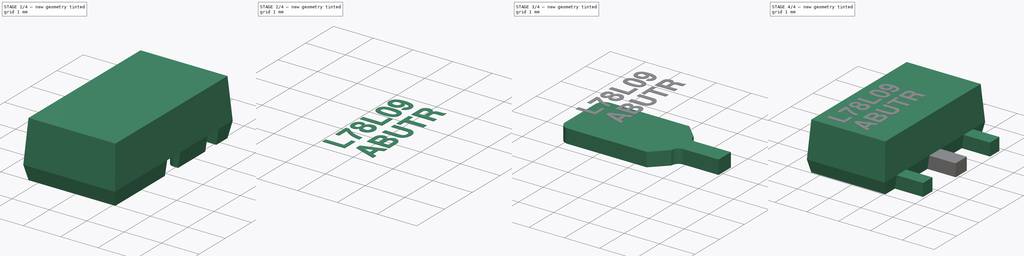
[diagram: build sequence overview — one tinted view per stage of 4, left to right]
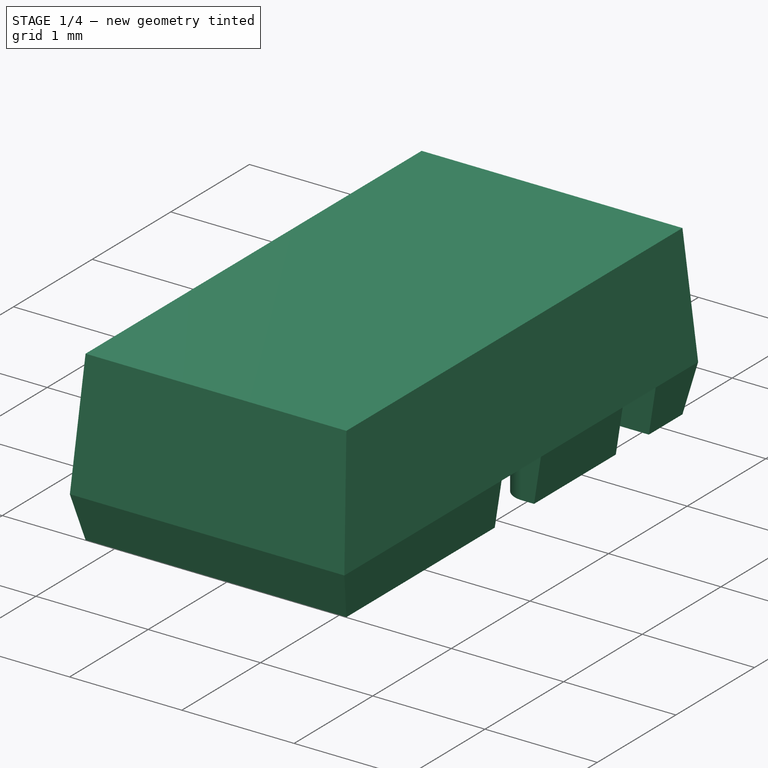
[diagram: stage 1 of 4 — iso view after this stage's code; geometry added in this stage tinted green]
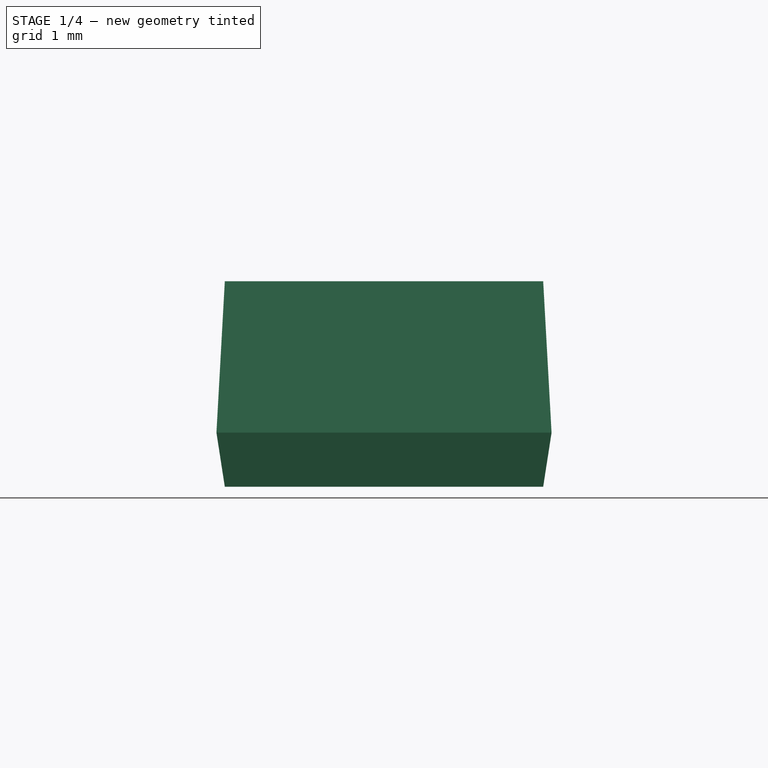
[diagram: stage 1 of 4 — front view after this stage's code; geometry added in this stage tinted green]
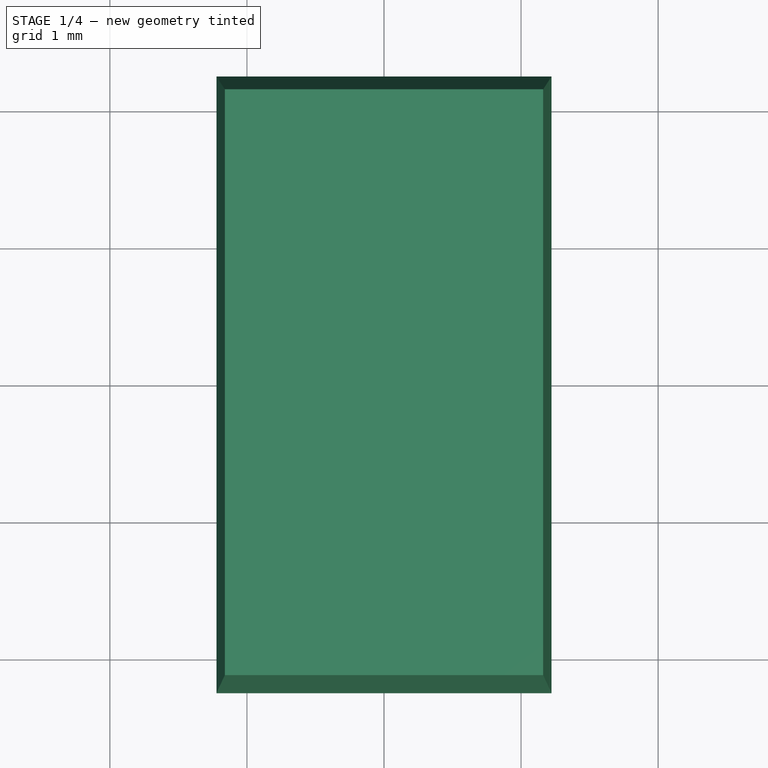
[diagram: stage 1 of 4 — top view after this stage's code; geometry added in this stage tinted green]
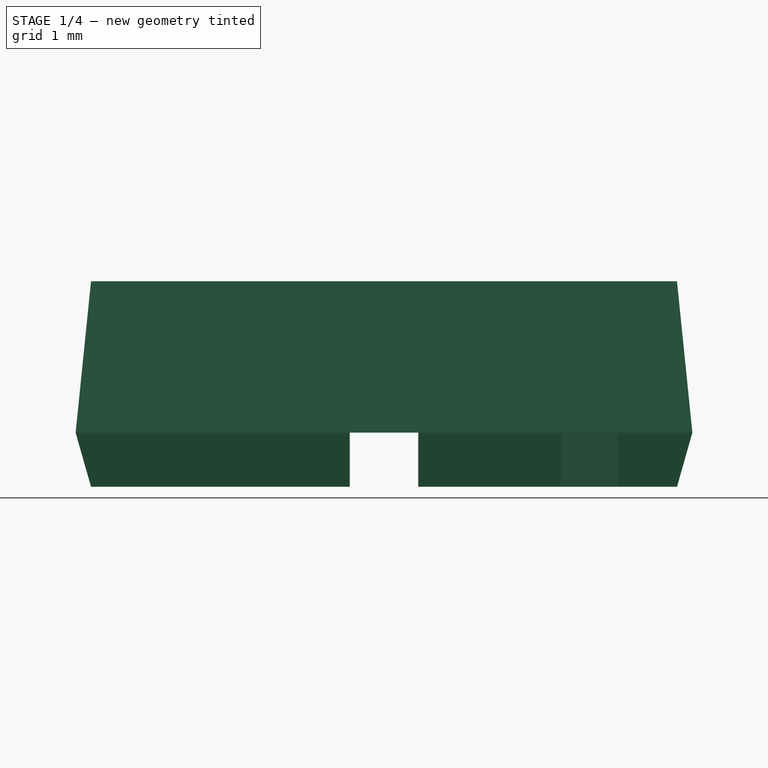
[diagram: stage 1 of 4 — right view after this stage's code; geometry added in this stage tinted green]
FCSTD DOCUMENT  (FreeCAD 0.19R16945 (Git))
Label: STMicroelectronics Packages SOT-89
License: All rights reserved
LicenseURL: http://en.wikipedia.org/wiki/All_rights_reserved
objects: Sketcher::SketchObject×7, PartDesign::Body×4, PartDesign::Pad×2, PartDesign::ShapeBinder×2, PartDesign::Pocket×2, Part::Part2DObjectPython×2, Part::Extrusion×2, PartDesign::AdditiveLoft×1, PartDesign::Mirrored×1, PartDesign::FeatureBase×1, PartDesign::Fillet×1, Part::MultiFuse×1
note: 31 computed .brp shape members not serialized (recipe doc carries the construction recipe); baked Part::Feature solids carry a one-line shape summary decoded from their .brp

FEATURE [Sketcher::SketchObject] Sketch  label="Mid"
  AttachmentOffset = pos=(0,0,0.395) rot=(0,0,1;0rad)
  MapMode = 5
  Placement = pos=(0,0,0.395) rot=(0,0,1;0rad)
  Support = -> [XY_Plane]
  expr: Constraints[10] = 4.5
  expr: Constraints[9] = 2.445
  expr: AttachmentOffset.Base.z = 0.395
  sketch-geometry (4):
    g0: LineSegment StartX=-1.2225 StartY=2.25 StartZ=0 EndX=1.2225 EndY=2.25 EndZ=0
    g1: LineSegment StartX=1.2225 StartY=2.25 StartZ=0 EndX=1.2225 EndY=-2.25 EndZ=0
    g2: LineSegment StartX=1.2225 StartY=-2.25 StartZ=0 EndX=-1.2225 EndY=-2.25 EndZ=0
    g3: LineSegment StartX=-1.2225 StartY=-2.25 StartZ=0 EndX=-1.2225 EndY=2.25 EndZ=0
  constraints (11):
    c: Coincident(g0,g1)
    c: Coincident(g1,g2)
    c: Coincident(g2,g3)
    c: Coincident(g3,g0)
    c: Horizontal(g0)
    c: Horizontal(g2)
    c: Vertical(g1)
    c: Vertical(g3)
    c: Symmetric(g1,g0,g-1)
    c: DistanceX(g0,g0) = 2.445
    c: DistanceY(g1,g1) = 4.5
FEATURE [Sketcher::SketchObject] Sketch001  label="Top"
  AttachmentOffset = pos=(0,0,1.5) rot=(0,0,1;0rad)
  MapMode = 5
  Placement = pos=(0,0,1.5) rot=(0,0,1;0rad)
  Support = -> [XY_Plane]
  expr: AttachmentOffset.Base.z = 1.5
  expr: Constraints[10] = 0.95 * Sketch.Constraints[10]
  expr: Constraints[9] = 0.95 * Sketch.Constraints[9]
  sketch-geometry (4):
    g0: LineSegment StartX=-1.16137 StartY=2.1375 StartZ=0 EndX=1.16137 EndY=2.1375 EndZ=0
    g1: LineSegment StartX=1.16137 StartY=2.1375 StartZ=0 EndX=1.16137 EndY=-2.1375 EndZ=0
    g2: LineSegment StartX=1.16137 StartY=-2.1375 StartZ=0 EndX=-1.16137 EndY=-2.1375 EndZ=0
    g3: LineSegment StartX=-1.16137 StartY=-2.1375 StartZ=0 EndX=-1.16137 EndY=2.1375 EndZ=0
  constraints (11):
    c: Coincident(g0,g1)
    c: Coincident(g1,g2)
    c: Coincident(g2,g3)
    c: Coincident(g3,g0)
    c: Horizontal(g0)
    c: Horizontal(g2)
    c: Vertical(g1)
    c: Vertical(g3)
    c: Symmetric(g1,g0,g-1)
    c: DistanceX(g0,g0) = 2.32275
    c: DistanceY(g1,g1) = 4.275
FEATURE [Sketcher::SketchObject] Sketch002  label="Bottom"
  MapMode = 5
  Support = -> [XY_Plane]
  expr: AttachmentOffset.Base.z = 0
  expr: Constraints[10] = Sketch001.Constraints[10]
  expr: Constraints[9] = Sketch001.Constraints[9]
  sketch-geometry (4):
    g0: LineSegment StartX=-1.16137 StartY=2.1375 StartZ=0 EndX=1.16137 EndY=2.1375 EndZ=0
    g1: LineSegment StartX=1.16137 StartY=2.1375 StartZ=0 EndX=1.16137 EndY=-2.1375 EndZ=0
    g2: LineSegment StartX=1.16137 StartY=-2.1375 StartZ=0 EndX=-1.16137 EndY=-2.1375 EndZ=0
    g3: LineSegment StartX=-1.16137 StartY=-2.1375 StartZ=0 EndX=-1.16137 EndY=2.1375 EndZ=0
  constraints (11):
    c: Coincident(g0,g1)
    c: Coincident(g1,g2)
    c: Coincident(g2,g3)
    c: Coincident(g3,g0)
    c: Horizontal(g0)
    c: Horizontal(g2)
    c: Vertical(g1)
    c: Vertical(g3)
    c: Symmetric(g1,g0,g-1)
    c: DistanceX(g0,g0) = 2.32275
    c: DistanceY(g1,g1) = 4.275
FEATURE [PartDesign::AdditiveLoft] AdditiveLoft
  Closed = true
  Profile = -> Sketch001
  Ruled = true
  Sections = -> [Sketch,Sketch002]
FEATURE [PartDesign::Body] Body002
  Group = -> [Sketch004,Pad001]
  Origin = -> Origin002
  Tip = -> Pad001
FEATURE [PartDesign::ShapeBinder] ShapeBinder
  Support = -> [Sketch003]
  TraceSupport = false
FEATURE [Sketcher::SketchObject] Sketch005
  ExternalGeometry = -> [ShapeBinder]
  MapMode = 5
  Support = -> [XY_Plane]
  sketch-geometry (10):
    g0: LineSegment StartX=0.44 StartY=-0.8625 StartZ=0 EndX=-2.0475 EndY=-0.8625 EndZ=0
    g1: LineSegment StartX=-2.0475 StartY=-0.8625 StartZ=0 EndX=-2.0475 EndY=0.8625 EndZ=0
    g2: LineSegment StartX=-2.0475 StartY=0.8625 StartZ=0 EndX=0.44 EndY=0.8625 EndZ=0
    g3: LineSegment StartX=0.44 StartY=0.8625 StartZ=0 EndX=0.8525 EndY=0.45 EndZ=0
    g4: LineSegment StartX=1.0525 StartY=0.25 StartZ=0 EndX=2.0475 EndY=0.25 EndZ=0
    g5: LineSegment StartX=2.0475 StartY=0.25 StartZ=0 EndX=2.0475 EndY=-0.25 EndZ=0
    g6: LineSegment StartX=2.0475 StartY=-0.25 StartZ=0 EndX=1.0525 EndY=-0.25 EndZ=0
    g7: LineSegment StartX=0.8525 StartY=-0.45 StartZ=0 EndX=0.44 EndY=-0.8625 EndZ=0
    g8: ArcOfCircle CenterX=1.0525 CenterY=-0.45 CenterZ=0 NormalX=0 NormalY=0 NormalZ=1 AngleXU=0 Radius=0.2 StartAngle=1.5708 EndAngle=3.14159
    g9: ArcOfCircle CenterX=1.0525 CenterY=0.45 CenterZ=0 NormalX=0 NormalY=0 NormalZ=1 AngleXU=0 Radius=0.2 StartAngle=3.14159 EndAngle=4.71239
  constraints (22):
    c: Coincident(g-6,g0)
    c: Coincident(g0,g-5)
    c: Coincident(g0,g1)
    c: Coincident(g1,g-4)
    c: Coincident(g1,g2)
    c: Coincident(g2,g-12)
    c: Coincident(g2,g3)
    c: Coincident(g3,g-12)
    c: Coincident(g4,g5)
    c: Coincident(g5,g-9)
    c: Coincident(g5,g6)
    c: Coincident(g6,g-8)
    c: Coincident(g7,g0)
    c: Coincident(g7,g-7)
    c: Coincident(g8,g-7)
    c: Coincident(g8,g6)
    c: Coincident(g8,g7)
    c: Coincident(g4,g-11)
    c: Coincident(g4,g-10)
    c: Coincident(g9,g-11)
    c: Coincident(g9,g3)
    c: Coincident(g9,g4)
FEATURE [PartDesign::Pocket] Pocket
  BaseFeature = -> AdditiveLoft
  Length = 0.395
  Length2 = 100
  Profile = -> Sketch005
  Reversed = true
  Type = 0
FEATURE [PartDesign::ShapeBinder] ShapeBinder001
  Support = -> [Sketch004]
  TraceSupport = false
FEATURE [Sketcher::SketchObject] Sketch006
  ExternalGeometry = -> [ShapeBinder001]
  MapMode = 5
  Support = -> [XY_Plane]
  sketch-geometry (4):
    g0: LineSegment StartX=0.7975 StartY=1.71 StartZ=0 EndX=2.0475 EndY=1.71 EndZ=0
    g1: LineSegment StartX=2.0475 StartY=1.71 StartZ=0 EndX=2.0475 EndY=1.29 EndZ=0
    g2: LineSegment StartX=2.0475 StartY=1.29 StartZ=0 EndX=0.7975 EndY=1.29 EndZ=0
    g3: LineSegment StartX=0.7975 StartY=1.29 StartZ=0 EndX=0.7975 EndY=1.71 EndZ=0
  constraints (10):
    c: Coincident(g0,g1)
    c: Coincident(g1,g2)
    c: Coincident(g2,g3)
    c: Coincident(g3,g0)
    c: Horizontal(g0)
    c: Horizontal(g2)
    c: Vertical(g1)
    c: Vertical(g3)
    c: Coincident(g0,g-6)
    c: Coincident(g1,g-5)
FEATURE [PartDesign::Pocket] Pocket001
  BaseFeature = -> Pocket
  Length = 0.395
  Length2 = 100
  Profile = -> Sketch006
  Reversed = true
  Type = 0
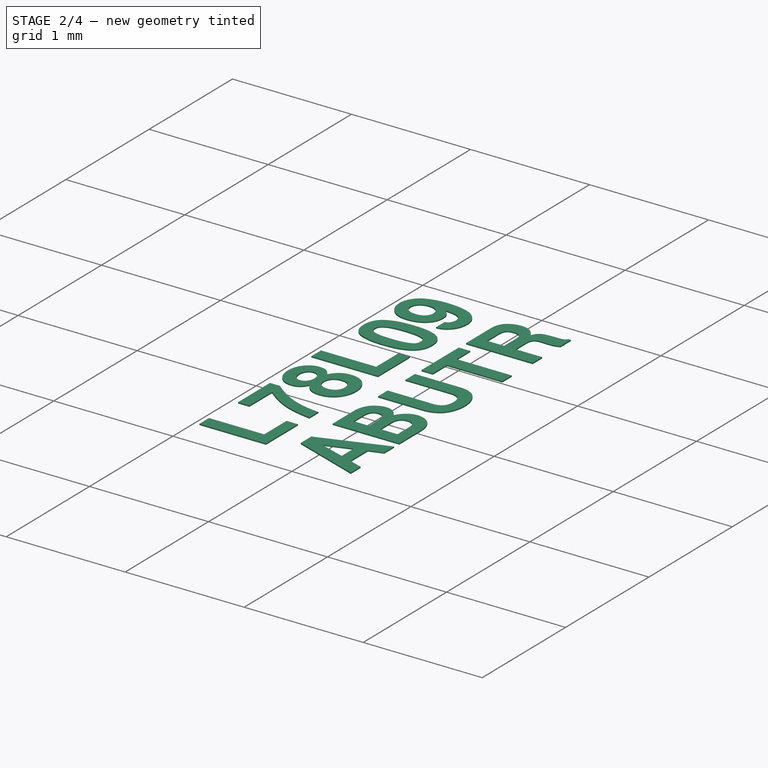
[diagram: stage 2 of 4 — iso view after this stage's code; geometry added in this stage tinted green]
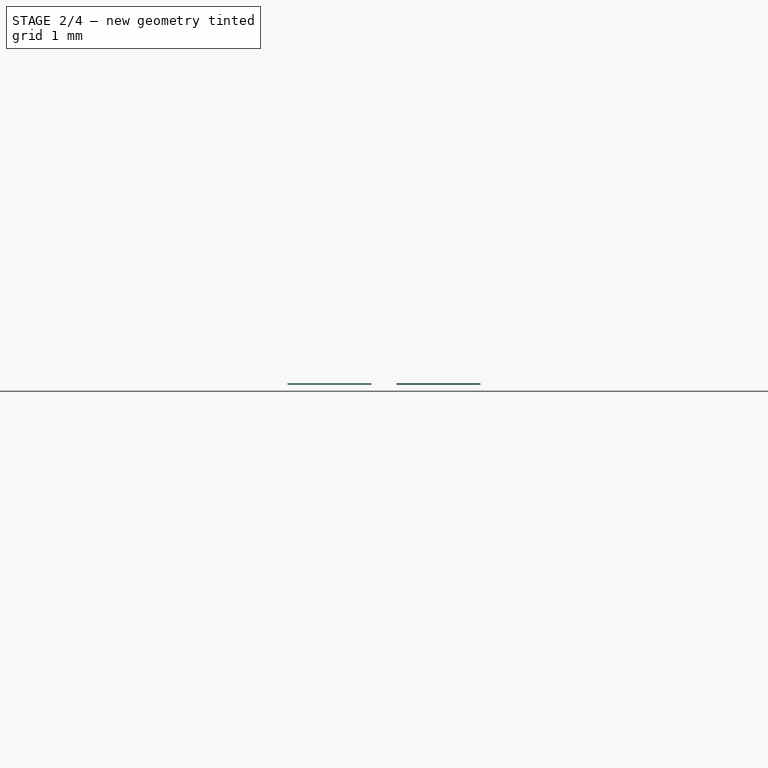
[diagram: stage 2 of 4 — front view after this stage's code; geometry added in this stage tinted green]
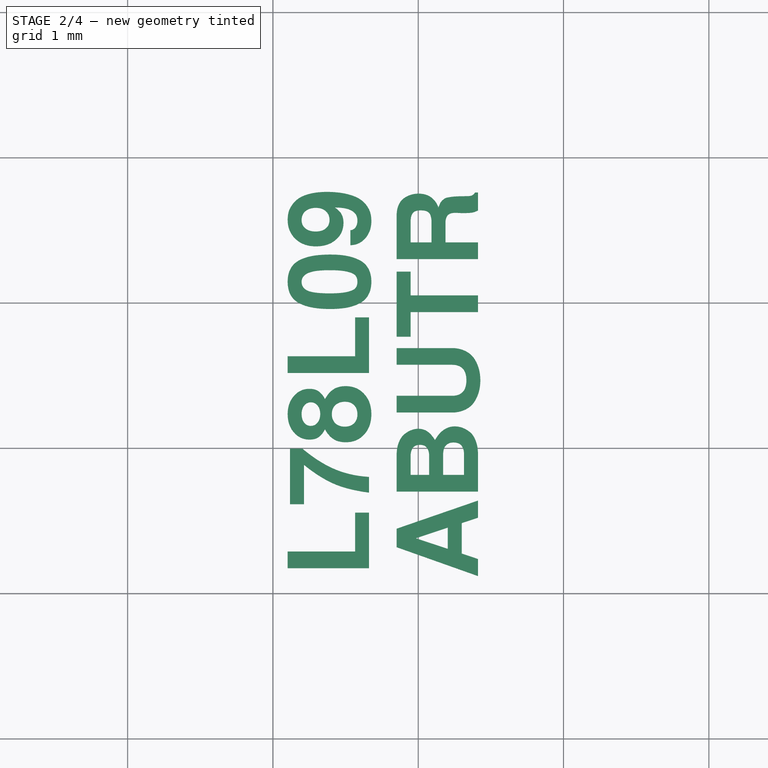
[diagram: stage 2 of 4 — top view after this stage's code; geometry added in this stage tinted green]
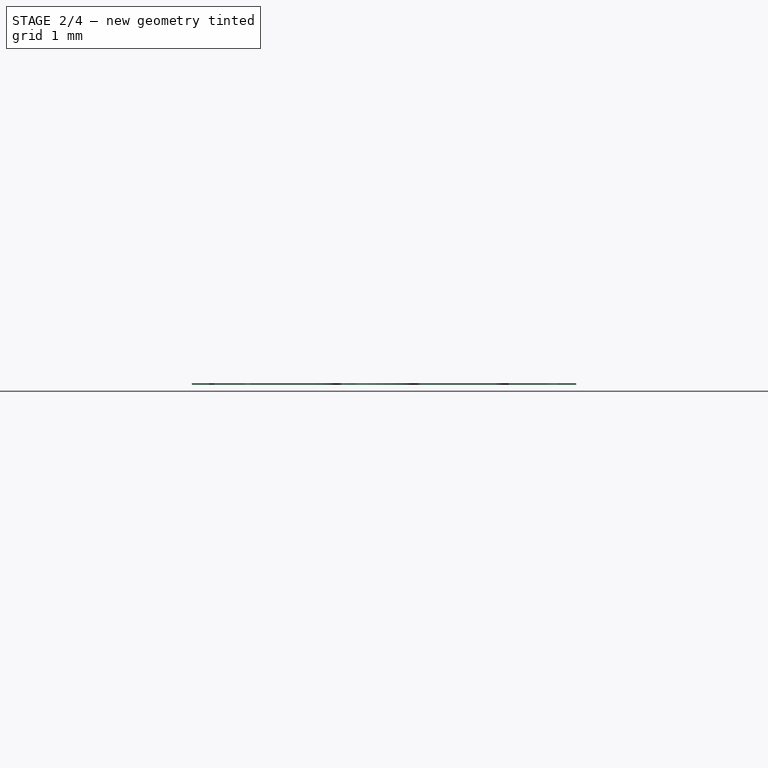
[diagram: stage 2 of 4 — right view after this stage's code; geometry added in this stage tinted green]
FEATURE [PartDesign::Mirrored] Mirrored
  BaseFeature = -> Pocket001
  MirrorPlane = -> XZ_Plane
  Originals = -> [Pocket001]
FEATURE [PartDesign::Body] Body001
  Group = -> [Sketch003,Pad,Fillet]
  Origin = -> Origin001
  Tip = -> Fillet
FEATURE [Part::Part2DObjectPython] ShapeString  # Draft 2D object (typed FeaturePython)
  AttachmentOffset = pos=(1.5,-0.25,0) rot=(0,0,-1;1.5708rad)
  FontFile = <userpath>/Desktop/GitHub/freecad-projects/00-fonts/FreeSansBold.ttf
  MapMode = 6
  Placement = pos=(-0.338625,-1.8875,1.5) rot=(0,0,1;1.5708rad)
  Size = 0.3
  String = L78L09
  Support = -> [Mirrored]
  Tracking = 0
FEATURE [Part::Part2DObjectPython] ShapeString001  # Draft 2D object (typed FeaturePython)
  AttachmentOffset = pos=(0.75,-0.25,0) rot=(0,0,-1;1.5708rad)
  FontFile = <userpath>/Desktop/GitHub/freecad-projects/00-fonts/FreeSansBold.ttf
  MapMode = 6
  Placement = pos=(0.411375,-1.8875,1.5) rot=(0,0,1;1.5708rad)
  Size = 0.3
  String = ABUTR
  Support = -> [Mirrored]
  Tracking = 0
FEATURE [Part::Extrusion] Extrude
  Base = -> ShapeString
  Dir = (0,0,1)
  DirMode = 2
  FaceMakerClass = Part::FaceMakerBullseye
  LengthFwd = 0.01
  LengthRev = 0
  Solid = false
  Symmetric = false
FEATURE [Part::Extrusion] Extrude001
  Base = -> ShapeString001
  Dir = (0,0,1)
  DirMode = 2
  FaceMakerClass = Part::FaceMakerBullseye
  LengthFwd = 0.01
  LengthRev = 0
  Solid = false
  Symmetric = false
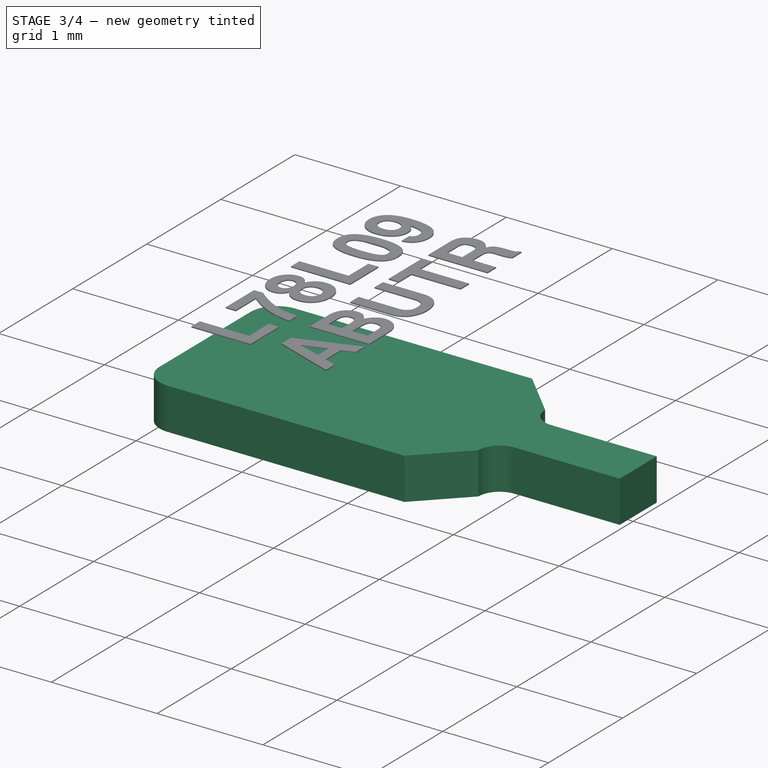
[diagram: stage 3 of 4 — iso view after this stage's code; geometry added in this stage tinted green]
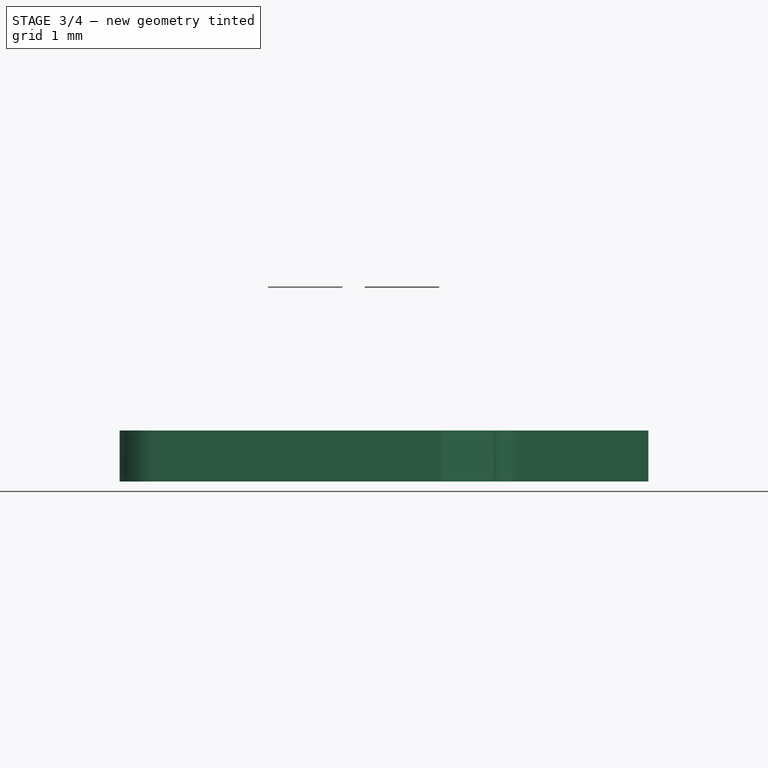
[diagram: stage 3 of 4 — front view after this stage's code; geometry added in this stage tinted green]
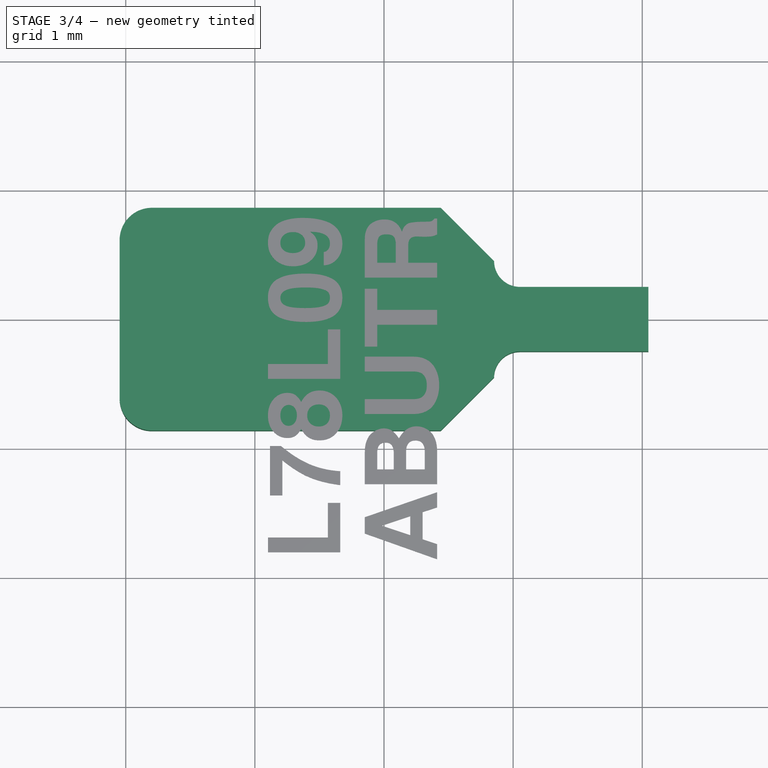
[diagram: stage 3 of 4 — top view after this stage's code; geometry added in this stage tinted green]
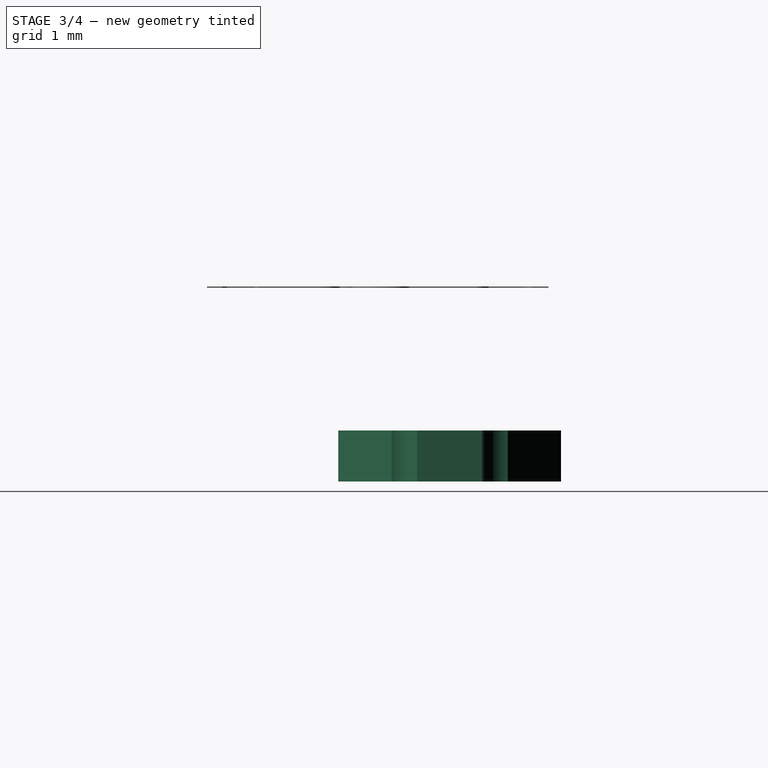
[diagram: stage 3 of 4 — right view after this stage's code; geometry added in this stage tinted green]
FEATURE [Sketcher::SketchObject] Sketch003
  MapMode = 5
  Support = -> [XY_Plane001]
  sketch-geometry (10):
    g0: LineSegment StartX=0.44 StartY=0.8625 StartZ=0 EndX=-2.0475 EndY=0.8625 EndZ=0
    g1: LineSegment StartX=-2.0475 StartY=0.8625 StartZ=0 EndX=-2.0475 EndY=-0.8625 EndZ=0
    g2: LineSegment StartX=-2.0475 StartY=-0.8625 StartZ=0 EndX=0.44 EndY=-0.8625 EndZ=0
    g3: LineSegment StartX=0.44 StartY=0.8625 StartZ=0 EndX=0.8525 EndY=0.45 EndZ=0
    g4: LineSegment StartX=1.0525 StartY=0.25 StartZ=0 EndX=2.0475 EndY=0.25 EndZ=0
    g5: LineSegment StartX=2.0475 StartY=0.25 StartZ=0 EndX=2.0475 EndY=-0.25 EndZ=0
    g6: LineSegment StartX=2.0475 StartY=-0.25 StartZ=0 EndX=1.0525 EndY=-0.25 EndZ=0
    g7: LineSegment StartX=0.8525 StartY=-0.45 StartZ=0 EndX=0.44 EndY=-0.8625 EndZ=0
    g8: ArcOfCircle CenterX=1.0525 CenterY=-0.45 CenterZ=0 NormalX=0 NormalY=0 NormalZ=1 AngleXU=0 Radius=0.2 StartAngle=1.5708 EndAngle=3.14159
    g9: ArcOfCircle CenterX=1.0525 CenterY=0.45 CenterZ=0 NormalX=0 NormalY=0 NormalZ=1 AngleXU=0 Radius=0.2 StartAngle=3.14159 EndAngle=4.71239
  constraints (29):
    c: Coincident(g0,g1)
    c: Coincident(g1,g2)
    c: Horizontal(g2)
    c: DistanceY(g1,g1) = 1.725
    c: Horizontal(g0)
    c: Symmetric(g0,g1,g-1)
    c: Equal(g0,g2)
    c: Coincident(g0,g3)
    c: Horizontal(g4)
    c: Coincident(g4,g5)
    c: Coincident(g5,g6)
    c: Horizontal(g6)
    c: Coincident(g7,g2)
    c: Tangent(g6,g8) = -1.5708
    c: Tangent(g4,g9) = -1.5708
    c: Equal(g9,g8)
    c: Symmetric(g4,g5,g-1)
    c: DistanceX(g0,g4) = 4.095
    c: DistanceX(g0,g3) = 2.9
    c: Angle(g3,g7) = 1.5708
    c: Equal(g6,g4)
    c: DistanceY(g5,g5) = 0.5
    c: DistanceX(g1,g-1) = 2.0475
    c: Coincident(g7,g8)
    c: Coincident(g3,g9)
    c: DistanceY(g7,g3) = 0.9
    c: DistanceX(g1,g2) = 2.4875
    c: Horizontal(g8,g7)
    c: Horizontal(g9,g3)
FEATURE [PartDesign::Pad] Pad
  Length = 0.395
  Length2 = 100
  Profile = -> Sketch003
  Type = 0
  expr: Length = 0.395
FEATURE [PartDesign::Body] Body003
  Group = -> [Clone]
  Origin = -> Origin003
  Placement = pos=(0,-3,0) rot=(0,0,1;0rad)
  Tip = -> Clone
FEATURE [PartDesign::Fillet] Fillet
  Base = -> Pad [Edge8,Edge5]
  BaseFeature = -> Pad
  Radius = 0.25
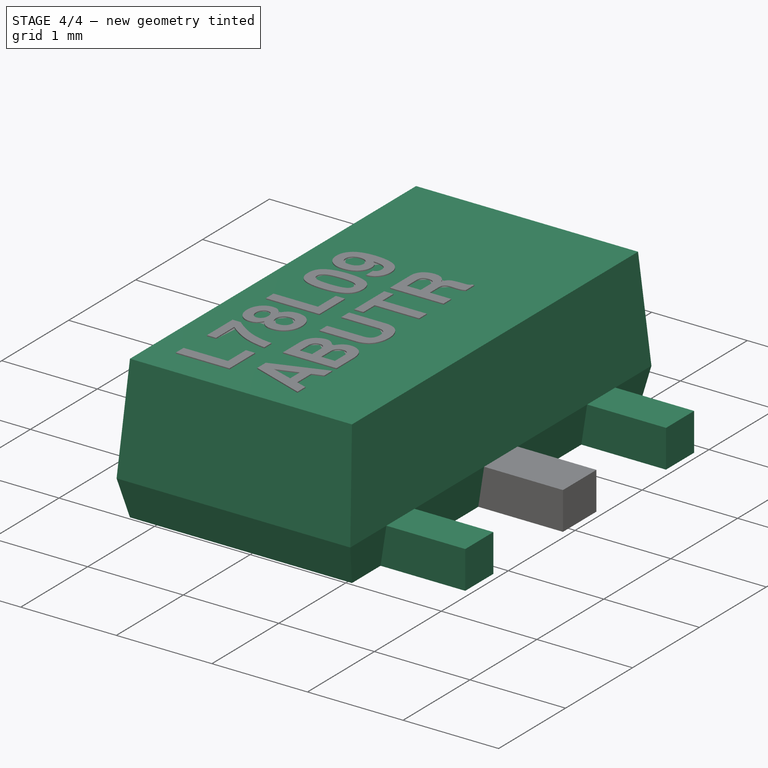
[diagram: stage 4 of 4 — iso view after this stage's code; geometry added in this stage tinted green]
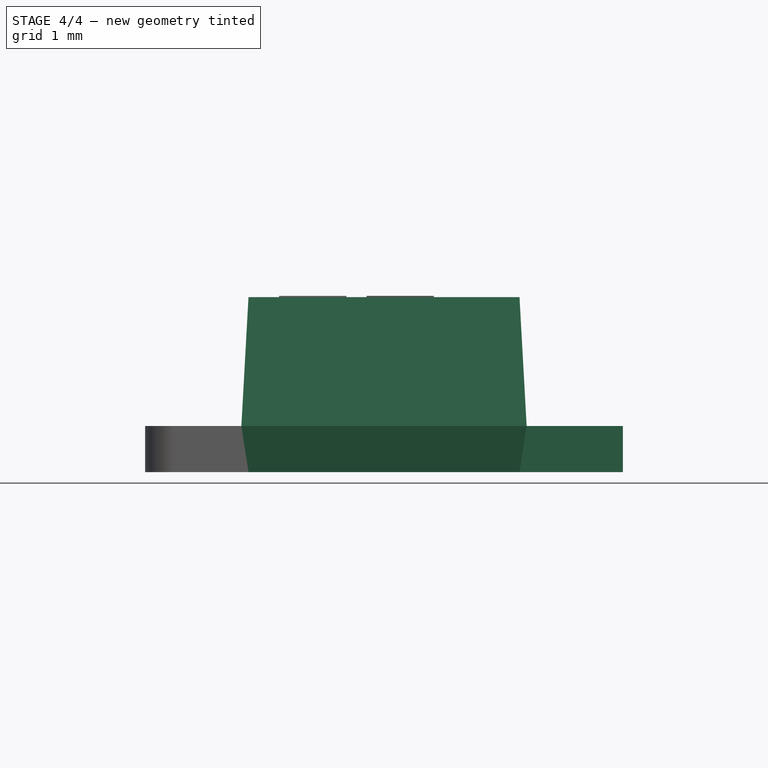
[diagram: stage 4 of 4 — front view after this stage's code; geometry added in this stage tinted green]
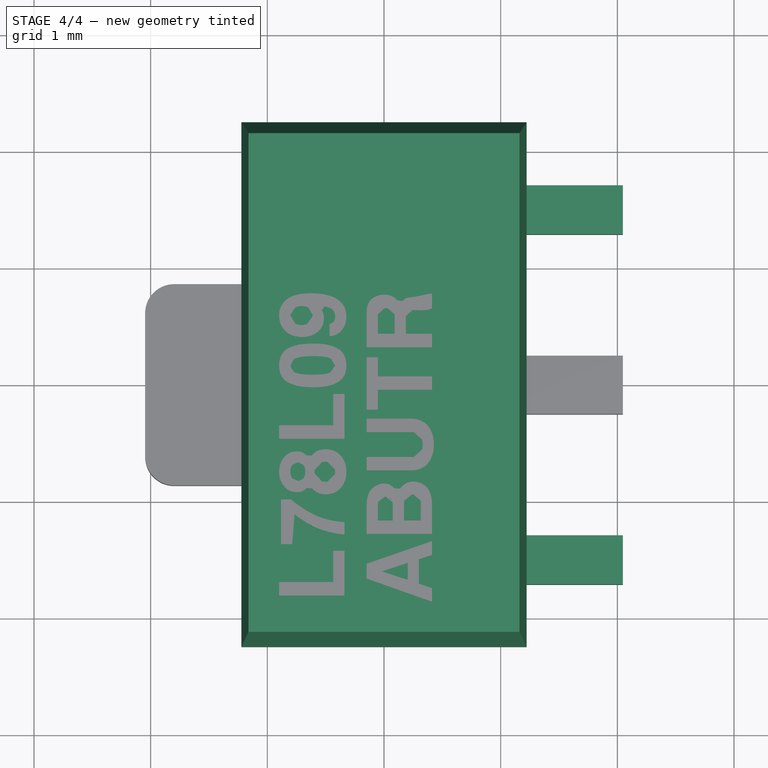
[diagram: stage 4 of 4 — top view after this stage's code; geometry added in this stage tinted green]
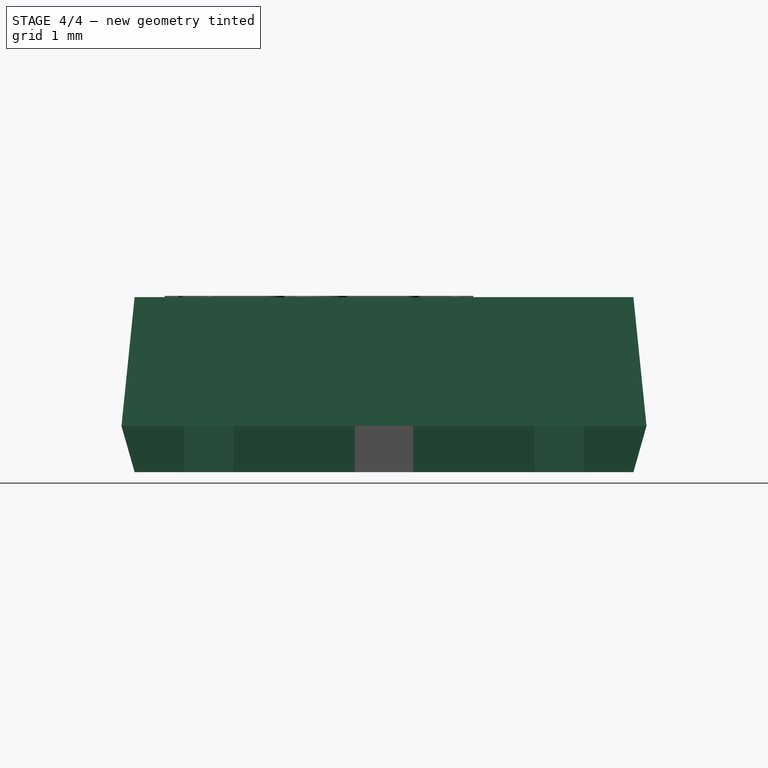
[diagram: stage 4 of 4 — right view after this stage's code; geometry added in this stage tinted green]
FEATURE [Sketcher::SketchObject] Sketch004
  MapMode = 5
  Support = -> [XY_Plane002]
  sketch-geometry (5):
    g0: LineSegment StartX=0.7975 StartY=1.29 StartZ=0 EndX=2.0475 EndY=1.29 EndZ=0
    g1: LineSegment StartX=2.0475 StartY=1.29 StartZ=0 EndX=2.0475 EndY=1.71 EndZ=0
    g2: LineSegment StartX=2.0475 StartY=1.71 StartZ=0 EndX=0.7975 EndY=1.71 EndZ=0
    g3: LineSegment StartX=0.7975 StartY=1.71 StartZ=0 EndX=0.7975 EndY=1.29 EndZ=0
    g4: GeomPoint X=0.7975 Y=1.5 Z=0
  constraints (13):
    c: Coincident(g0,g1)
    c: Coincident(g1,g2)
    c: Horizontal(g0)
    c: Horizontal(g2)
    c: Vertical(g1)
    c: Vertical(g3)
    c: DistanceY(g1,g1) = 0.42
    c: DistanceX(g3,g0) = 1.25
    c: Symmetric(g3,g3,g4)
    c: DistanceY(g-1,g4) = 1.5
    c: DistanceX(g-1,g1) = 2.0475
    c: Coincident(g2,g3)
    c: Coincident(g0,g3)
FEATURE [PartDesign::Pad] Pad001
  Length = 0.395
  Length2 = 100
  Profile = -> Sketch004
  Refine = true
  Type = 0
FEATURE [PartDesign::Body] Body  label="Package"
  Group = -> [Sketch,Sketch001,Sketch002,AdditiveLoft,ShapeBinder,Sketch005,Pocket,ShapeBinder001,Sketch006,Pocket001,Mirrored]
  Origin = -> Origin
  Tip = -> Mirrored
FEATURE [PartDesign::FeatureBase] Clone
  BaseFeature = -> Body002
FEATURE [Part::MultiFuse] Fusion  label="L78L09ABUTR"
  Shapes = -> [Extrude001,Body,Body001,Body003,Body002,Extrude]
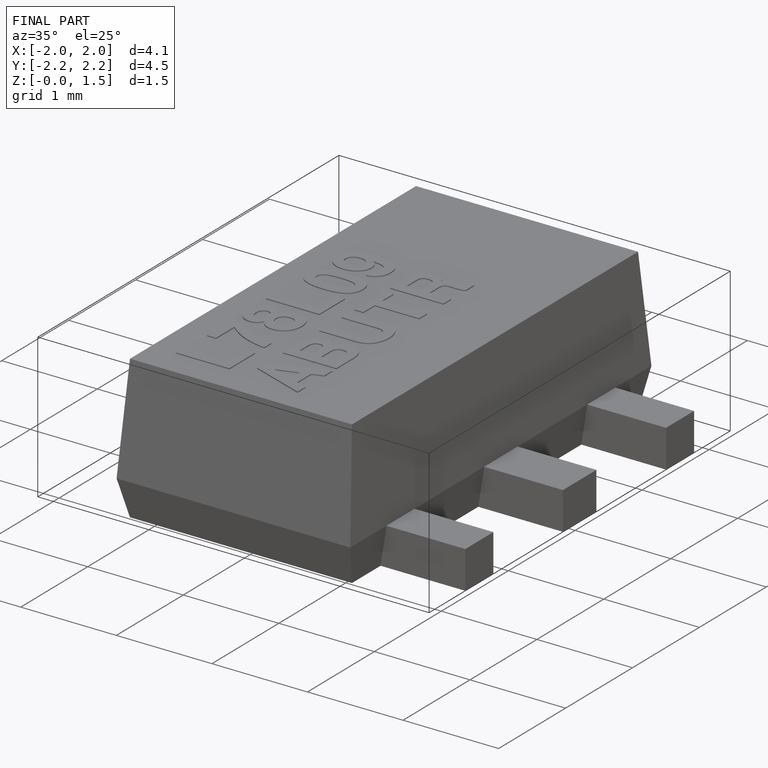
[diagram: finished part — iso view with bounding-box wireframe]
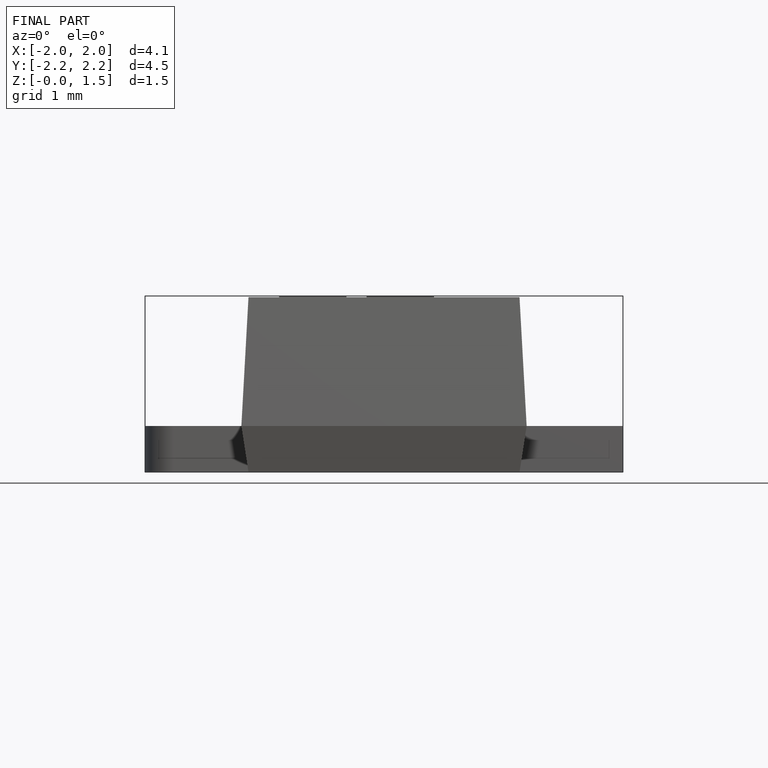
[diagram: finished part — front view with bounding-box wireframe]
